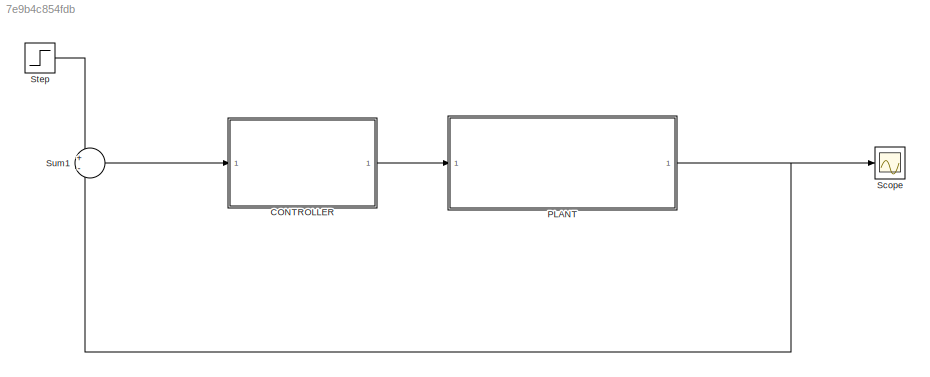
MODEL slx_7e9b4c854fdb
KIND model
CONFIG AbsTol = auto
CONFIG EnableMultiTasking = off
CONFIG FixedStep = auto
CONFIG MaxStep = auto
CONFIG MinStep = auto
CONFIG RelTol = 1e-3
CONFIG SampleTimeConstraint = Unconstrained
CONFIG Solver = VariableStepAuto
CONFIG SolverName = VariableStepAuto
CONFIG StartTime = 0.0
CONFIG StopTime = 120
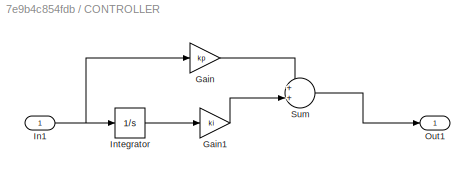
BLOCK [SubSystem] CONTROLLER
  Ports = [1, 1]
  RequestExecContextInheritance = off
BLOCK [Gain] CONTROLLER/Gain
  Gain = kp
BLOCK [Gain] CONTROLLER/Gain1
  Gain = ki
BLOCK [Inport] CONTROLLER/In1
BLOCK [Integrator] CONTROLLER/Integrator
  Ports = [1, 1]
BLOCK [Outport] CONTROLLER/Out1
BLOCK [Sum] CONTROLLER/Sum
  Ports = [2, 1]
BLOCK [ModelReference] PLANT
  ModelNameDialog = PLANT
  ModelReferenceVersion = 1.11
  Ports = [1, 1]
BLOCK [Scope] Scope
  Floating = off
  NumInputPorts = 1
  Ports = [1]
  ScopeSpecificationString = Simulink.scopes.TimeScopeBlockCfg('CurrentConfiguration', extmgr.ConfigurationSet(extmgr.Configuration('Core','General UI',true),extmgr.Configuration('Core','Source UI',true),extmgr.Configuration('Sources','WiredSimulink',true),extmgr.Configuration('Visuals','Time Domain',true,'SerializedDisplays',{struct('MinYLimReal','-62.5','MaxYLimReal','562.5','YLabelReal','','MinYLimMag','0.00000','MaxYLimMa...<+1315ch>
BLOCK [Step] Step
  After = u
  SampleTime = 0
BLOCK [Sum] Sum1
  Inputs = +-
  Ports = [2, 1]
LINE CONTROLLER/Gain1:1 -> CONTROLLER/Sum:2
LINE CONTROLLER/Gain:1 -> CONTROLLER/Sum:1
NET CONTROLLER/In1:1 -> CONTROLLER/Gain:1, CONTROLLER/Integrator:1
LINE CONTROLLER/Integrator:1 -> CONTROLLER/Gain1:1
LINE CONTROLLER/Sum:1 -> CONTROLLER/Out1:1
LINE CONTROLLER:1 -> PLANT:1
NET PLANT:1 -> Scope:1, Sum1:2
LINE Step:1 -> Sum1:1
LINE Sum1:1 -> CONTROLLER:1
note: NET lines group one-source signal fan-out (src -> all destinations, sorted); 1:1 wires keep LINE
